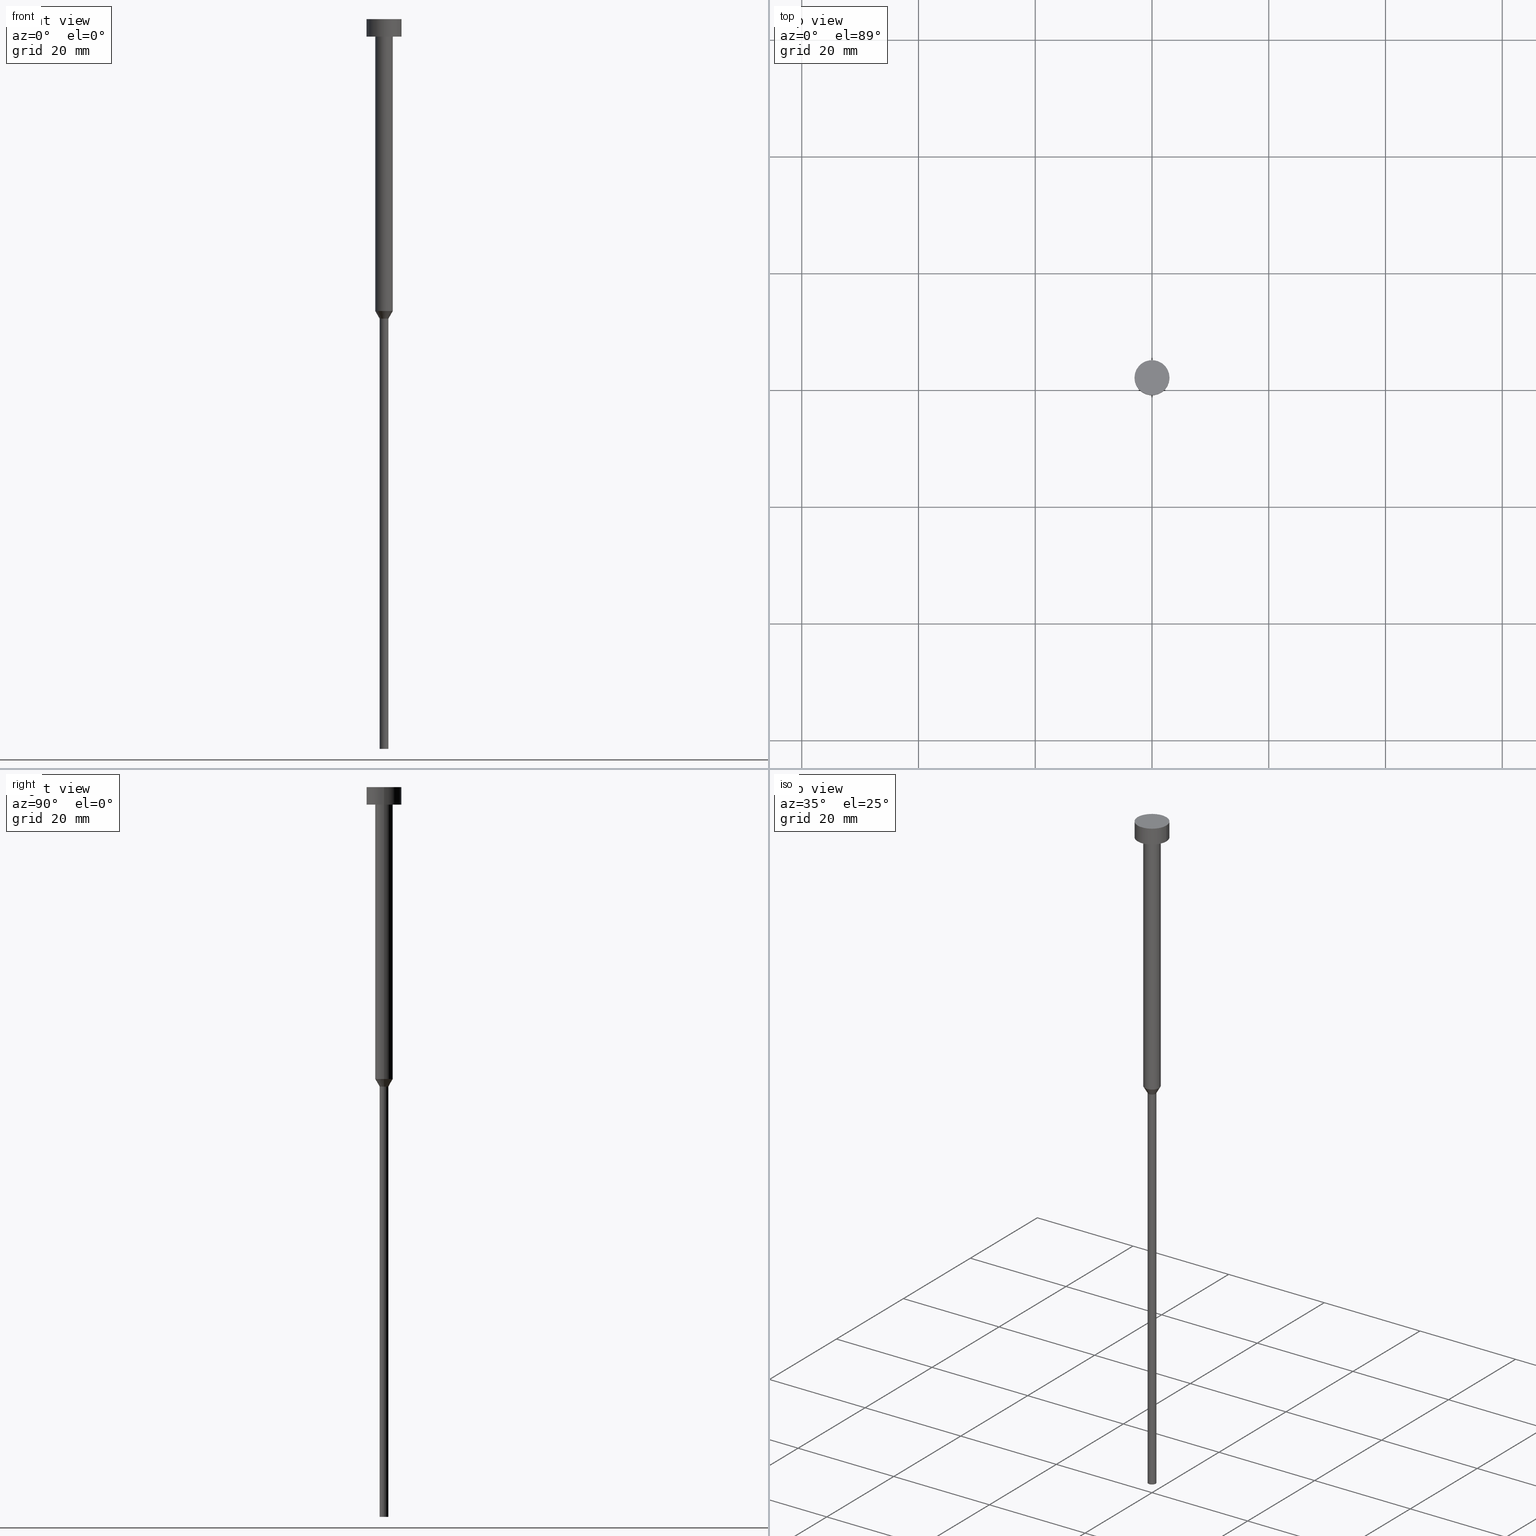
[diagram: canonical four-view strip — front | top / right | iso, engineering-drawing reading convention]
A machine part, canonical four-view strip (front | top / right | iso — engineering-drawing reading convention). The complete STEP part file that produces these views, byte-faithful:
ISO-10303-21;
HEADER;
FILE_DESCRIPTION (( 'STEP AP203' ),
    '1' );
FILE_NAME ('43c1.STEP',
    '2023-02-13T10:54:44',
    ( '' ),
    ( '' ),
    'SwSTEP 2.0',
    'SolidWorks 2019',
    '' );
FILE_SCHEMA (( 'CONFIG_CONTROL_DESIGN' ));
ENDSEC;

DATA;
#1 = ORIENTED_EDGE ( 'NONE', *, *, #297, .F. ) ;
#2 = EDGE_CURVE ( 'NONE', #118, #176, #311, .T. ) ;
#3 = PERSON_AND_ORGANIZATION ( #81, #170 ) ;
#4 = ORIENTED_EDGE ( 'NONE', *, *, #312, .T. ) ;
#5 = UNCERTAINTY_MEASURE_WITH_UNIT (LENGTH_MEASURE( 1.000000000000000082E-05 ), #190, 'distance_accuracy_value', 'NONE');
#6 = DIRECTION ( 'NONE',  ( 1.000000000000000000, 0.000000000000000000, 0.000000000000000000 ) ) ;
#7 = CC_DESIGN_PERSON_AND_ORGANIZATION_ASSIGNMENT ( #302, #196, ( #247 ) ) ;
#8 = LINE ( 'NONE', #226, #292 ) ;
#9 = EDGE_LOOP ( 'NONE', ( #217, #283 ) ) ;
#10 = AXIS2_PLACEMENT_3D ( 'NONE', #39, #124, #61 ) ;
#11 = CARTESIAN_POINT ( 'NONE',  ( -3.000000000000000000, 3.673940397442059868E-16, -3.000000000000000888 ) ) ;
#12 = COORDINATED_UNIVERSAL_TIME_OFFSET ( 1, 0, .AHEAD. ) ;
#13 = MANIFOLD_SOLID_BREP ( 'Rotovat1', #44 ) ;
#14 = CYLINDRICAL_SURFACE ( 'NONE', #88, 0.7500000000000000000 ) ;
#15 = CALENDAR_DATE ( 2023, 13, 2 ) ;
#16 = DIRECTION ( 'NONE',  ( 1.000000000000000000, 0.000000000000000000, 0.000000000000000000 ) ) ;
#17 = AXIS2_PLACEMENT_3D ( 'NONE', #215, #322, #163 ) ;
#18 = DIRECTION ( 'NONE',  ( 1.000000000000000000, 0.000000000000000000, 0.000000000000000000 ) ) ;
#19 = LINE ( 'NONE', #130, #105 ) ;
#20 = DIRECTION ( 'NONE',  ( 1.000000000000000000, 0.000000000000000000, 0.000000000000000000 ) ) ;
#21 = VECTOR ( 'NONE', #188, 1000.000000000000000 ) ;
#22 = LOCAL_TIME ( 11, 54, 44.00000000000000000, #341 ) ;
#23 = FACE_BOUND ( 'NONE', #336, .T. ) ;
#24 = ORIENTED_EDGE ( 'NONE', *, *, #250, .T. ) ;
#25 = LINE ( 'NONE', #248, #329 ) ;
#26 = ORIENTED_EDGE ( 'NONE', *, *, #47, .T. ) ;
#27 = DIRECTION ( 'NONE',  ( 1.000000000000000000, 0.000000000000000000, 0.000000000000000000 ) ) ;
#28 = DATE_TIME_ROLE ( 'creation_date' ) ;
#29 = EDGE_CURVE ( 'NONE', #176, #261, #8, .T. ) ;
#30 = APPROVAL_STATUS ( 'not_yet_approved' ) ;
#31 = ORIENTED_EDGE ( 'NONE', *, *, #2, .F. ) ;
#32 = ORIENTED_EDGE ( 'NONE', *, *, #317, .T. ) ;
#33 = DIRECTION ( 'NONE',  ( 1.000000000000000000, 0.000000000000000000, 0.000000000000000000 ) ) ;
#34 = EDGE_CURVE ( 'NONE', #55, #66, #180, .T. ) ;
#35 = VERTEX_POINT ( 'NONE', #174 ) ;
#36 = COORDINATED_UNIVERSAL_TIME_OFFSET ( 1, 0, .AHEAD. ) ;
#37 = DIRECTION ( 'NONE',  ( -0.000000000000000000, -0.000000000000000000, 1.000000000000000000 ) ) ;
#38 = CIRCLE ( 'NONE', #271, 3.000000000000000000 ) ;
#39 = CARTESIAN_POINT ( 'NONE',  ( 0.000000000000000000, 0.000000000000000000, 0.000000000000000000 ) ) ;
#40 = CARTESIAN_POINT ( 'NONE',  ( 0.000000000000000000, 0.000000000000000000, 0.000000000000000000 ) ) ;
#41 = ADVANCED_FACE ( 'NONE', ( #201 ), #280, .T. ) ;
#42 = COORDINATED_UNIVERSAL_TIME_OFFSET ( 1, 0, .AHEAD. ) ;
#43 = DIRECTION ( 'NONE',  ( -0.000000000000000000, -0.000000000000000000, 1.000000000000000000 ) ) ;
#44 = CLOSED_SHELL ( 'NONE', ( #178, #353, #278, #53, #141, #204, #331, #121, #235, #187, #41 ) ) ;
#45 = LINE ( 'NONE', #211, #21 ) ;
#46 = CC_DESIGN_SECURITY_CLASSIFICATION ( #247, ( #181 ) ) ;
#47 = EDGE_CURVE ( 'NONE', #50, #94, #100, .T. ) ;
#48 = DIRECTION ( 'NONE',  ( -1.000000000000000000, 0.000000000000000000, -0.000000000000000000 ) ) ;
#49 = DIRECTION ( 'NONE',  ( -0.000000000000000000, -0.000000000000000000, 1.000000000000000000 ) ) ;
#50 = VERTEX_POINT ( 'NONE', #214 ) ;
#51 = AXIS2_PLACEMENT_3D ( 'NONE', #40, #155, #318 ) ;
#52 = DIRECTION ( 'NONE',  ( 1.000000000000000000, 0.000000000000000000, 0.000000000000000000 ) ) ;
#53 = ADVANCED_FACE ( 'NONE', ( #320 ), #243, .T. ) ;
#54 = DIRECTION ( 'NONE',  ( -0.000000000000000000, -0.000000000000000000, 1.000000000000000000 ) ) ;
#55 = VERTEX_POINT ( 'NONE', #79 ) ;
#56 = CIRCLE ( 'NONE', #352, 1.500000000000000000 ) ;
#57 = CC_DESIGN_PERSON_AND_ORGANIZATION_ASSIGNMENT ( #142, #265, ( #80 ) ) ;
#58 = APPROVAL_DATE_TIME ( #238, #242 ) ;
#59 = PERSON_AND_ORGANIZATION ( #81, #170 ) ;
#60 = ORIENTED_EDGE ( 'NONE', *, *, #229, .F. ) ;
#61 = DIRECTION ( 'NONE',  ( 1.000000000000000000, 0.000000000000000000, 0.000000000000000000 ) ) ;
#62 = ORIENTED_EDGE ( 'NONE', *, *, #167, .F. ) ;
#63 =( GEOMETRIC_REPRESENTATION_CONTEXT ( 3 ) GLOBAL_UNCERTAINTY_ASSIGNED_CONTEXT ( ( #5 ) ) GLOBAL_UNIT_ASSIGNED_CONTEXT ( ( #190, #323, #350 ) ) REPRESENTATION_CONTEXT ( 'NONE', 'WORKASPACE' ) );
#64 = DIRECTION ( 'NONE',  ( -0.000000000000000000, -0.000000000000000000, 1.000000000000000000 ) ) ;
#65 = EDGE_CURVE ( 'NONE', #93, #35, #157, .T. ) ;
#66 = VERTEX_POINT ( 'NONE', #103 ) ;
#67 = CC_DESIGN_PERSON_AND_ORGANIZATION_ASSIGNMENT ( #3, #234, ( #181 ) ) ;
#68 = ORIENTED_EDGE ( 'NONE', *, *, #244, .T. ) ;
#69 = EDGE_CURVE ( 'NONE', #219, #198, #19, .T. ) ;
#70 = CONICAL_SURFACE ( 'NONE', #346, 1.500000000000000000, 0.5235987755983013692 ) ;
#71 = DATE_AND_TIME ( #145, #310 ) ;
#72 = CARTESIAN_POINT ( 'NONE',  ( 1.500000000000000000, 0.000000000000000000, -50.00000000000000000 ) ) ;
#73 = CYLINDRICAL_SURFACE ( 'NONE', #51, 3.000000000000000000 ) ;
#74 = CC_DESIGN_PERSON_AND_ORGANIZATION_ASSIGNMENT ( #115, #99, ( #181 ) ) ;
#75 = VECTOR ( 'NONE', #125, 1000.000000000000000 ) ;
#76 = CARTESIAN_POINT ( 'NONE',  ( 0.000000000000000000, 0.000000000000000000, -50.00000000000000000 ) ) ;
#77 = AXIS2_PLACEMENT_3D ( 'NONE', #129, #136, #272 ) ;
#78 = EDGE_CURVE ( 'NONE', #94, #55, #45, .T. ) ;
#79 = CARTESIAN_POINT ( 'NONE',  ( -3.000000000000000000, 3.673940397442059868E-16, -3.673940397442059868E-16 ) ) ;
#80 = PRODUCT ( '43c1', '43c1', '', ( #171 ) ) ;
#81 = PERSON ( 'NEUR�EN�', 'NEUR�EN�', 'NEUR�EN�', ('NEUR�EN�'), ('NEUR�EN�'), ('NEUR�EN�') ) ;
#82 = PRODUCT_RELATED_PRODUCT_CATEGORY ( 'detail', '', ( #80 ) ) ;
#83 = VECTOR ( 'NONE', #208, 1000.000000000000227 ) ;
#84 = DIRECTION ( 'NONE',  ( 1.000000000000000000, 0.000000000000000000, 0.000000000000000000 ) ) ;
#85 = ORIENTED_EDGE ( 'NONE', *, *, #34, .T. ) ;
#86 = CARTESIAN_POINT ( 'NONE',  ( 0.7500000000000000000, 0.000000000000000000, -125.0000000000000000 ) ) ;
#87 = AXIS2_PLACEMENT_3D ( 'NONE', #212, #288, #268 ) ;
#88 = AXIS2_PLACEMENT_3D ( 'NONE', #102, #210, #184 ) ;
#89 = CIRCLE ( 'NONE', #119, 0.7500000000000000000 ) ;
#90 = DATE_AND_TIME ( #15, #22 ) ;
#91 = ORIENTED_EDGE ( 'NONE', *, *, #209, .T. ) ;
#92 = APPROVAL_DATE_TIME ( #284, #207 ) ;
#93 = VERTEX_POINT ( 'NONE', #345 ) ;
#94 = VERTEX_POINT ( 'NONE', #11 ) ;
#95 = VECTOR ( 'NONE', #116, 1000.000000000000227 ) ;
#96 = ORIENTED_EDGE ( 'NONE', *, *, #69, .F. ) ;
#97 = EDGE_LOOP ( 'NONE', ( #26, #144, #60, #149 ) ) ;
#98 = PLANE ( 'NONE',  #87 ) ;
#99 = PERSON_AND_ORGANIZATION_ROLE ( 'design_supplier' ) ;
#100 = CIRCLE ( 'NONE', #245, 3.000000000000000000 ) ;
#101 = AXIS2_PLACEMENT_3D ( 'NONE', #348, #54, #327 ) ;
#102 = CARTESIAN_POINT ( 'NONE',  ( 0.000000000000000000, 0.000000000000000000, 0.000000000000000000 ) ) ;
#103 = CARTESIAN_POINT ( 'NONE',  ( 3.000000000000000000, 0.000000000000000000, -3.673940397442059868E-16 ) ) ;
#104 = CARTESIAN_POINT ( 'NONE',  ( 0.000000000000000000, 0.000000000000000000, 0.000000000000000000 ) ) ;
#105 = VECTOR ( 'NONE', #37, 1000.000000000000000 ) ;
#106 = FACE_OUTER_BOUND ( 'NONE', #205, .T. ) ;
#107 = CIRCLE ( 'NONE', #127, 0.7500000000000000000 ) ;
#108 = FACE_OUTER_BOUND ( 'NONE', #177, .T. ) ;
#109 = ORIENTED_EDGE ( 'NONE', *, *, #29, .F. ) ;
#110 = CARTESIAN_POINT ( 'NONE',  ( 0.000000000000000000, 0.000000000000000000, -50.00000000000000000 ) ) ;
#111 = DIRECTION ( 'NONE',  ( -0.000000000000000000, -0.000000000000000000, 1.000000000000000000 ) ) ;
#112 = PERSON_AND_ORGANIZATION ( #81, #170 ) ;
#113 = ORIENTED_EDGE ( 'NONE', *, *, #167, .T. ) ;
#114 = CC_DESIGN_APPROVAL ( #242, ( #247 ) ) ;
#115 = PERSON_AND_ORGANIZATION ( #81, #170 ) ;
#116 = DIRECTION ( 'NONE',  ( 0.5000000000000021094, 0.000000000000000000, 0.8660254037844373753 ) ) ;
#117 = ORIENTED_EDGE ( 'NONE', *, *, #158, .T. ) ;
#118 = VERTEX_POINT ( 'NONE', #316 ) ;
#119 = AXIS2_PLACEMENT_3D ( 'NONE', #191, #49, #84 ) ;
#120 = ORIENTED_EDGE ( 'NONE', *, *, #69, .T. ) ;
#121 = ADVANCED_FACE ( 'NONE', ( #153 ), #123, .T. ) ;
#122 = APPLICATION_CONTEXT ( 'configuration controlled 3d designs of mechanical parts and assemblies' ) ;
#123 = CYLINDRICAL_SURFACE ( 'NONE', #197, 1.500000000000000000 ) ;
#124 = DIRECTION ( 'NONE',  ( 0.000000000000000000, 0.000000000000000000, 1.000000000000000000 ) ) ;
#125 = DIRECTION ( 'NONE',  ( -0.000000000000000000, -0.000000000000000000, 1.000000000000000000 ) ) ;
#126 = DATE_TIME_ROLE ( 'classification_date' ) ;
#127 = AXIS2_PLACEMENT_3D ( 'NONE', #315, #43, #183 ) ;
#128 = CARTESIAN_POINT ( 'NONE',  ( 0.000000000000000000, 0.000000000000000000, 0.000000000000000000 ) ) ;
#129 = CARTESIAN_POINT ( 'NONE',  ( 0.000000000000000000, 0.000000000000000000, -3.673940397442059868E-16 ) ) ;
#130 = CARTESIAN_POINT ( 'NONE',  ( -0.7500000000000000000, 9.184850993605149670E-17, 0.000000000000000000 ) ) ;
#131 = AXIS2_PLACEMENT_3D ( 'NONE', #76, #241, #16 ) ;
#132 = DIRECTION ( 'NONE',  ( 1.000000000000000000, 0.000000000000000000, 0.000000000000000000 ) ) ;
#133 = CC_DESIGN_APPROVAL ( #207, ( #173 ) ) ;
#134 = FACE_OUTER_BOUND ( 'NONE', #9, .T. ) ;
#135 = DIRECTION ( 'NONE',  ( -0.000000000000000000, -0.000000000000000000, 1.000000000000000000 ) ) ;
#136 = DIRECTION ( 'NONE',  ( -0.000000000000000000, -0.000000000000000000, 1.000000000000000000 ) ) ;
#137 = AXIS2_PLACEMENT_3D ( 'NONE', #203, #309, #148 ) ;
#138 = ORIENTED_EDGE ( 'NONE', *, *, #34, .F. ) ;
#139 = AXIS2_PLACEMENT_3D ( 'NONE', #189, #251, #347 ) ;
#140 = CARTESIAN_POINT ( 'NONE',  ( 0.000000000000000000, 0.000000000000000000, -3.000000000000000888 ) ) ;
#141 = ADVANCED_FACE ( 'NONE', ( #338 ), #98, .T. ) ;
#142 = PERSON_AND_ORGANIZATION ( #81, #170 ) ;
#143 = CC_DESIGN_PERSON_AND_ORGANIZATION_ASSIGNMENT ( #306, #263, ( #173 ) ) ;
#144 = ORIENTED_EDGE ( 'NONE', *, *, #78, .T. ) ;
#145 = CALENDAR_DATE ( 2023, 13, 2 ) ;
#146 = CARTESIAN_POINT ( 'NONE',  ( 1.500000000000000000, 0.000000000000000000, -50.00000000000000000 ) ) ;
#147 = LOCAL_TIME ( 11, 54, 44.00000000000000000, #42 ) ;
#148 = DIRECTION ( 'NONE',  ( 1.000000000000000000, 0.000000000000000000, 0.000000000000000000 ) ) ;
#149 = ORIENTED_EDGE ( 'NONE', *, *, #254, .F. ) ;
#150 = ORIENTED_EDGE ( 'NONE', *, *, #192, .F. ) ;
#151 = SECURITY_CLASSIFICATION_LEVEL ( 'unclassified' ) ;
#152 = AXIS2_PLACEMENT_3D ( 'NONE', #296, #249, #52 ) ;
#153 = FACE_OUTER_BOUND ( 'NONE', #335, .T. ) ;
#154 = DATE_AND_TIME ( #277, #299 ) ;
#155 = DIRECTION ( 'NONE',  ( -0.000000000000000000, -0.000000000000000000, 1.000000000000000000 ) ) ;
#156 = PERSON_AND_ORGANIZATION ( #81, #170 ) ;
#157 = LINE ( 'NONE', #264, #75 ) ;
#158 = EDGE_CURVE ( 'NONE', #198, #93, #240, .T. ) ;
#159 = CYLINDRICAL_SURFACE ( 'NONE', #224, 3.000000000000000000 ) ;
#160 = FACE_OUTER_BOUND ( 'NONE', #199, .T. ) ;
#161 = ADVANCED_BREP_SHAPE_REPRESENTATION ( '43c1', ( #13, #10 ), #63 ) ;
#162 = CARTESIAN_POINT ( 'NONE',  ( 0.000000000000000000, 0.000000000000000000, -50.00000000000000000 ) ) ;
#163 = DIRECTION ( 'NONE',  ( 1.000000000000000000, 0.000000000000000000, 0.000000000000000000 ) ) ;
#164 = AXIS2_PLACEMENT_3D ( 'NONE', #162, #300, #20 ) ;
#165 = DIRECTION ( 'NONE',  ( 0.000000000000000000, 0.000000000000000000, -1.000000000000000000 ) ) ;
#166 = ORIENTED_EDGE ( 'NONE', *, *, #321, .T. ) ;
#167 = EDGE_CURVE ( 'NONE', #176, #93, #286, .T. ) ;
#168 = DIRECTION ( 'NONE',  ( -0.000000000000000000, -0.000000000000000000, 1.000000000000000000 ) ) ;
#169 = AXIS2_PLACEMENT_3D ( 'NONE', #128, #186, #290 ) ;
#170 = ORGANIZATION ( 'NEUR�EN�', 'NEUR�EN�', '' ) ;
#171 = MECHANICAL_CONTEXT ( 'NONE', #122, 'mechanical' ) ;
#172 = EDGE_LOOP ( 'NONE', ( #68, #117, #62, #31 ) ) ;
#173 = PRODUCT_DEFINITION ( 'NEZN�M�', '', #181, #282 ) ;
#174 = CARTESIAN_POINT ( 'NONE',  ( -1.500000000000000000, 1.836970198721029934E-16, -3.000000000000000888 ) ) ;
#175 = CIRCLE ( 'NONE', #152, 0.7500000000000000000 ) ;
#176 = VERTEX_POINT ( 'NONE', #72 ) ;
#177 = EDGE_LOOP ( 'NONE', ( #113, #258, #330, #109 ) ) ;
#178 = ADVANCED_FACE ( 'NONE', ( #236 ), #159, .T. ) ;
#179 = ORIENTED_EDGE ( 'NONE', *, *, #29, .T. ) ;
#180 = CIRCLE ( 'NONE', #237, 3.000000000000000000 ) ;
#181 = PRODUCT_DEFINITION_FORMATION_WITH_SPECIFIED_SOURCE ( 'LIBOVOLN�', '', #80, .NOT_KNOWN. ) ;
#182 = CARTESIAN_POINT ( 'NONE',  ( 0.000000000000000000, 0.000000000000000000, 0.000000000000000000 ) ) ;
#183 = DIRECTION ( 'NONE',  ( 1.000000000000000000, 0.000000000000000000, 0.000000000000000000 ) ) ;
#184 = DIRECTION ( 'NONE',  ( 1.000000000000000000, 0.000000000000000000, 0.000000000000000000 ) ) ;
#185 = LOCAL_TIME ( 11, 54, 44.00000000000000000, #225 ) ;
#186 = DIRECTION ( 'NONE',  ( -0.000000000000000000, -0.000000000000000000, 1.000000000000000000 ) ) ;
#187 = ADVANCED_FACE ( 'NONE', ( #106 ), #73, .T. ) ;
#188 = DIRECTION ( 'NONE',  ( -0.000000000000000000, -0.000000000000000000, 1.000000000000000000 ) ) ;
#189 = CARTESIAN_POINT ( 'NONE',  ( 0.000000000000000000, 0.000000000000000000, -3.000000000000000888 ) ) ;
#190 =( LENGTH_UNIT ( ) NAMED_UNIT ( * ) SI_UNIT ( .MILLI., .METRE. ) );
#191 = CARTESIAN_POINT ( 'NONE',  ( 0.000000000000000000, 0.000000000000000000, -125.0000000000000000 ) ) ;
#192 = EDGE_CURVE ( 'NONE', #35, #261, #56, .T. ) ;
#193 = CARTESIAN_POINT ( 'NONE',  ( 0.000000000000000000, 0.000000000000000000, -51.29903810567665090 ) ) ;
#194 = ORIENTED_EDGE ( 'NONE', *, *, #65, .F. ) ;
#195 = APPROVAL ( #30, 'NEUR�EN�' ) ;
#196 = PERSON_AND_ORGANIZATION_ROLE ( 'classification_officer' ) ;
#197 = AXIS2_PLACEMENT_3D ( 'NONE', #104, #233, #314 ) ;
#198 = VERTEX_POINT ( 'NONE', #340 ) ;
#199 = EDGE_LOOP ( 'NONE', ( #96, #166, #281, #313 ) ) ;
#200 = CARTESIAN_POINT ( 'NONE',  ( 0.000000000000000000, 0.000000000000000000, -3.673940397442059868E-16 ) ) ;
#201 = FACE_OUTER_BOUND ( 'NONE', #227, .T. ) ;
#202 = APPROVAL_PERSON_ORGANIZATION ( #112, #242, #289 ) ;
#203 = CARTESIAN_POINT ( 'NONE',  ( 0.000000000000000000, 0.000000000000000000, -1.836970198721029934E-16 ) ) ;
#204 = ADVANCED_FACE ( 'NONE', ( #160 ), #14, .T. ) ;
#205 = EDGE_LOOP ( 'NONE', ( #274, #32, #349, #138 ) ) ;
#206 = APPROVAL_ROLE ( '' ) ;
#207 = APPROVAL ( #255, 'NEUR�EN�' ) ;
#208 = DIRECTION ( 'NONE',  ( -0.5000000000000021094, 6.123233995736791920E-17, 0.8660254037844373753 ) ) ;
#209 = EDGE_CURVE ( 'NONE', #304, #219, #107, .T. ) ;
#210 = DIRECTION ( 'NONE',  ( -0.000000000000000000, -0.000000000000000000, 1.000000000000000000 ) ) ;
#211 = CARTESIAN_POINT ( 'NONE',  ( -3.000000000000000000, 3.673940397442059868E-16, 0.000000000000000000 ) ) ;
#212 = CARTESIAN_POINT ( 'NONE',  ( 0.000000000000000000, 0.000000000000000000, -125.0000000000000000 ) ) ;
#213 = APPROVAL_PERSON_ORGANIZATION ( #59, #207, #206 ) ;
#214 = CARTESIAN_POINT ( 'NONE',  ( 3.000000000000000000, 0.000000000000000000, -3.000000000000000888 ) ) ;
#215 = CARTESIAN_POINT ( 'NONE',  ( 0.000000000000000000, 0.000000000000000000, 0.000000000000000000 ) ) ;
#216 = APPLICATION_CONTEXT ( 'configuration controlled 3d designs of mechanical parts and assemblies' ) ;
#217 = ORIENTED_EDGE ( 'NONE', *, *, #47, .F. ) ;
#218 = CYLINDRICAL_SURFACE ( 'NONE', #17, 1.500000000000000000 ) ;
#219 = VERTEX_POINT ( 'NONE', #291 ) ;
#220 = CARTESIAN_POINT ( 'NONE',  ( 0.000000000000000000, -3.000000000000000000, -3.000000000000000888 ) ) ;
#221 = DIRECTION ( 'NONE',  ( 1.000000000000000000, 0.000000000000000000, 0.000000000000000000 ) ) ;
#222 = APPROVAL_STATUS ( 'not_yet_approved' ) ;
#223 = ORIENTED_EDGE ( 'NONE', *, *, #192, .T. ) ;
#224 = AXIS2_PLACEMENT_3D ( 'NONE', #182, #342, #18 ) ;
#225 = COORDINATED_UNIVERSAL_TIME_OFFSET ( 1, 0, .AHEAD. ) ;
#226 = CARTESIAN_POINT ( 'NONE',  ( 1.500000000000000000, 0.000000000000000000, 0.000000000000000000 ) ) ;
#227 = EDGE_LOOP ( 'NONE', ( #298, #85 ) ) ;
#228 = ORIENTED_EDGE ( 'NONE', *, *, #2, .T. ) ;
#229 = EDGE_CURVE ( 'NONE', #66, #55, #230, .T. ) ;
#230 = CIRCLE ( 'NONE', #77, 3.000000000000000000 ) ;
#231 = ORIENTED_EDGE ( 'NONE', *, *, #209, .F. ) ;
#232 = CC_DESIGN_DATE_AND_TIME_ASSIGNMENT ( #90, #126, ( #247 ) ) ;
#233 = DIRECTION ( 'NONE',  ( -0.000000000000000000, -0.000000000000000000, 1.000000000000000000 ) ) ;
#234 = PERSON_AND_ORGANIZATION_ROLE ( 'creator' ) ;
#235 = ADVANCED_FACE ( 'NONE', ( #23, #134 ), #252, .T. ) ;
#236 = FACE_OUTER_BOUND ( 'NONE', #97, .T. ) ;
#237 = AXIS2_PLACEMENT_3D ( 'NONE', #200, #308, #6 ) ;
#238 = DATE_AND_TIME ( #267, #147 ) ;
#239 = CIRCLE ( 'NONE', #101, 1.500000000000000000 ) ;
#240 = LINE ( 'NONE', #343, #83 ) ;
#241 = DIRECTION ( 'NONE',  ( -0.000000000000000000, -0.000000000000000000, 1.000000000000000000 ) ) ;
#242 = APPROVAL ( #222, 'NEUR�EN�' ) ;
#243 = CYLINDRICAL_SURFACE ( 'NONE', #169, 0.7500000000000000000 ) ;
#244 = EDGE_CURVE ( 'NONE', #118, #198, #303, .T. ) ;
#245 = AXIS2_PLACEMENT_3D ( 'NONE', #259, #64, #33 ) ;
#246 = CONICAL_SURFACE ( 'NONE', #164, 1.500000000000000000, 0.5235987755983013692 ) ;
#247 = SECURITY_CLASSIFICATION ( '', '', #151 ) ;
#248 = CARTESIAN_POINT ( 'NONE',  ( 3.000000000000000000, 0.000000000000000000, 0.000000000000000000 ) ) ;
#249 = DIRECTION ( 'NONE',  ( -0.000000000000000000, -0.000000000000000000, 1.000000000000000000 ) ) ;
#250 = EDGE_CURVE ( 'NONE', #198, #118, #175, .T. ) ;
#251 = DIRECTION ( 'NONE',  ( -0.000000000000000000, -0.000000000000000000, 1.000000000000000000 ) ) ;
#252 = PLANE ( 'NONE',  #324 ) ;
#253 = DIRECTION ( 'NONE',  ( -0.000000000000000000, -0.000000000000000000, 1.000000000000000000 ) ) ;
#254 = EDGE_CURVE ( 'NONE', #50, #66, #25, .T. ) ;
#255 = APPROVAL_STATUS ( 'not_yet_approved' ) ;
#256 = ORIENTED_EDGE ( 'NONE', *, *, #321, .F. ) ;
#257 = APPROVAL_DATE_TIME ( #71, #195 ) ;
#258 = ORIENTED_EDGE ( 'NONE', *, *, #65, .T. ) ;
#259 = CARTESIAN_POINT ( 'NONE',  ( 0.000000000000000000, 0.000000000000000000, -3.000000000000000888 ) ) ;
#260 = ORIENTED_EDGE ( 'NONE', *, *, #337, .F. ) ;
#261 = VERTEX_POINT ( 'NONE', #354 ) ;
#262 = APPROVAL_PERSON_ORGANIZATION ( #156, #195, #339 ) ;
#263 = PERSON_AND_ORGANIZATION_ROLE ( 'creator' ) ;
#264 = CARTESIAN_POINT ( 'NONE',  ( -1.500000000000000000, 1.836970198721029934E-16, 0.000000000000000000 ) ) ;
#265 = PERSON_AND_ORGANIZATION_ROLE ( 'design_owner' ) ;
#266 = CARTESIAN_POINT ( 'NONE',  ( 0.000000000000000000, 0.000000000000000000, -3.000000000000000888 ) ) ;
#267 = CALENDAR_DATE ( 2023, 13, 2 ) ;
#268 = DIRECTION ( 'NONE',  ( -1.000000000000000000, 0.000000000000000000, -0.000000000000000000 ) ) ;
#269 = DIRECTION ( 'NONE',  ( -0.000000000000000000, -0.000000000000000000, 1.000000000000000000 ) ) ;
#270 = CARTESIAN_POINT ( 'NONE',  ( 0.7500000000000000000, 0.000000000000000000, 0.000000000000000000 ) ) ;
#271 = AXIS2_PLACEMENT_3D ( 'NONE', #140, #253, #132 ) ;
#272 = DIRECTION ( 'NONE',  ( 1.000000000000000000, 0.000000000000000000, 0.000000000000000000 ) ) ;
#273 = APPLICATION_PROTOCOL_DEFINITION ( 'international standard', 'config_control_design', 1994, #122 ) ;
#274 = ORIENTED_EDGE ( 'NONE', *, *, #78, .F. ) ;
#275 = FACE_OUTER_BOUND ( 'NONE', #172, .T. ) ;
#276 = CIRCLE ( 'NONE', #139, 1.500000000000000000 ) ;
#277 = CALENDAR_DATE ( 2023, 13, 2 ) ;
#278 = ADVANCED_FACE ( 'NONE', ( #275 ), #70, .T. ) ;
#279 = EDGE_LOOP ( 'NONE', ( #231, #256 ) ) ;
#280 = PLANE ( 'NONE',  #137 ) ;
#281 = ORIENTED_EDGE ( 'NONE', *, *, #337, .T. ) ;
#282 = DESIGN_CONTEXT ( 'detailed design', #216, 'design' ) ;
#283 = ORIENTED_EDGE ( 'NONE', *, *, #317, .F. ) ;
#284 = DATE_AND_TIME ( #332, #185 ) ;
#285 = EDGE_LOOP ( 'NONE', ( #326, #24, #228, #1 ) ) ;
#286 = CIRCLE ( 'NONE', #131, 1.500000000000000000 ) ;
#287 = AXIS2_PLACEMENT_3D ( 'NONE', #193, #135, #27 ) ;
#288 = DIRECTION ( 'NONE',  ( 0.000000000000000000, 0.000000000000000000, -1.000000000000000000 ) ) ;
#289 = APPROVAL_ROLE ( '' ) ;
#290 = DIRECTION ( 'NONE',  ( 1.000000000000000000, 0.000000000000000000, 0.000000000000000000 ) ) ;
#291 = CARTESIAN_POINT ( 'NONE',  ( -0.7500000000000000000, 9.184850993605149670E-17, -125.0000000000000000 ) ) ;
#292 = VECTOR ( 'NONE', #333, 1000.000000000000000 ) ;
#293 = CC_DESIGN_APPROVAL ( #195, ( #181 ) ) ;
#294 = DIRECTION ( 'NONE',  ( 1.000000000000000000, 0.000000000000000000, 0.000000000000000000 ) ) ;
#295 = FACE_OUTER_BOUND ( 'NONE', #285, .T. ) ;
#296 = CARTESIAN_POINT ( 'NONE',  ( 0.000000000000000000, 0.000000000000000000, -51.29903810567665090 ) ) ;
#297 = EDGE_CURVE ( 'NONE', #93, #176, #239, .T. ) ;
#298 = ORIENTED_EDGE ( 'NONE', *, *, #229, .T. ) ;
#299 = LOCAL_TIME ( 11, 54, 44.00000000000000000, #12 ) ;
#300 = DIRECTION ( 'NONE',  ( -0.000000000000000000, -0.000000000000000000, 1.000000000000000000 ) ) ;
#301 = LINE ( 'NONE', #270, #319 ) ;
#302 = PERSON_AND_ORGANIZATION ( #81, #170 ) ;
#303 = CIRCLE ( 'NONE', #287, 0.7500000000000000000 ) ;
#304 = VERTEX_POINT ( 'NONE', #86 ) ;
#305 = CC_DESIGN_DATE_AND_TIME_ASSIGNMENT ( #154, #28, ( #173 ) ) ;
#306 = PERSON_AND_ORGANIZATION ( #81, #170 ) ;
#307 = ORIENTED_EDGE ( 'NONE', *, *, #297, .T. ) ;
#308 = DIRECTION ( 'NONE',  ( -0.000000000000000000, -0.000000000000000000, 1.000000000000000000 ) ) ;
#309 = DIRECTION ( 'NONE',  ( 0.000000000000000000, -0.000000000000000000, 1.000000000000000000 ) ) ;
#310 = LOCAL_TIME ( 11, 54, 44.00000000000000000, #36 ) ;
#311 = LINE ( 'NONE', #146, #95 ) ;
#312 = EDGE_CURVE ( 'NONE', #261, #35, #276, .T. ) ;
#313 = ORIENTED_EDGE ( 'NONE', *, *, #250, .F. ) ;
#314 = DIRECTION ( 'NONE',  ( 1.000000000000000000, 0.000000000000000000, 0.000000000000000000 ) ) ;
#315 = CARTESIAN_POINT ( 'NONE',  ( 0.000000000000000000, 0.000000000000000000, -125.0000000000000000 ) ) ;
#316 = CARTESIAN_POINT ( 'NONE',  ( 0.7500000000000000000, 0.000000000000000000, -51.29903810567665090 ) ) ;
#317 = EDGE_CURVE ( 'NONE', #94, #50, #38, .T. ) ;
#318 = DIRECTION ( 'NONE',  ( 1.000000000000000000, 0.000000000000000000, 0.000000000000000000 ) ) ;
#319 = VECTOR ( 'NONE', #168, 1000.000000000000000 ) ;
#320 = FACE_OUTER_BOUND ( 'NONE', #351, .T. ) ;
#321 = EDGE_CURVE ( 'NONE', #219, #304, #89, .T. ) ;
#322 = DIRECTION ( 'NONE',  ( -0.000000000000000000, -0.000000000000000000, 1.000000000000000000 ) ) ;
#323 =( NAMED_UNIT ( * ) PLANE_ANGLE_UNIT ( ) SI_UNIT ( $, .RADIAN. ) );
#324 = AXIS2_PLACEMENT_3D ( 'NONE', #220, #165, #48 ) ;
#325 = DIRECTION ( 'NONE',  ( -0.000000000000000000, -0.000000000000000000, 1.000000000000000000 ) ) ;
#326 = ORIENTED_EDGE ( 'NONE', *, *, #158, .F. ) ;
#327 = DIRECTION ( 'NONE',  ( 1.000000000000000000, 0.000000000000000000, 0.000000000000000000 ) ) ;
#328 = SHAPE_DEFINITION_REPRESENTATION ( #344, #161 ) ;
#329 = VECTOR ( 'NONE', #111, 1000.000000000000000 ) ;
#330 = ORIENTED_EDGE ( 'NONE', *, *, #312, .F. ) ;
#331 = ADVANCED_FACE ( 'NONE', ( #295 ), #246, .T. ) ;
#332 = CALENDAR_DATE ( 2023, 13, 2 ) ;
#333 = DIRECTION ( 'NONE',  ( -0.000000000000000000, -0.000000000000000000, 1.000000000000000000 ) ) ;
#334 = ORIENTED_EDGE ( 'NONE', *, *, #244, .F. ) ;
#335 = EDGE_LOOP ( 'NONE', ( #194, #307, #179, #150 ) ) ;
#336 = EDGE_LOOP ( 'NONE', ( #4, #223 ) ) ;
#337 = EDGE_CURVE ( 'NONE', #304, #118, #301, .T. ) ;
#338 = FACE_OUTER_BOUND ( 'NONE', #279, .T. ) ;
#339 = APPROVAL_ROLE ( '' ) ;
#340 = CARTESIAN_POINT ( 'NONE',  ( -0.7500000000000000000, 9.184850993605149670E-17, -51.29903810567665090 ) ) ;
#341 = COORDINATED_UNIVERSAL_TIME_OFFSET ( 1, 0, .AHEAD. ) ;
#342 = DIRECTION ( 'NONE',  ( -0.000000000000000000, -0.000000000000000000, 1.000000000000000000 ) ) ;
#343 = CARTESIAN_POINT ( 'NONE',  ( -1.500000000000000000, 1.836970198721029934E-16, -50.00000000000000000 ) ) ;
#344 = PRODUCT_DEFINITION_SHAPE ( 'NONE', 'NONE',  #173 ) ;
#345 = CARTESIAN_POINT ( 'NONE',  ( -1.500000000000000000, 1.836970198721029934E-16, -50.00000000000000000 ) ) ;
#346 = AXIS2_PLACEMENT_3D ( 'NONE', #110, #325, #221 ) ;
#347 = DIRECTION ( 'NONE',  ( 1.000000000000000000, 0.000000000000000000, 0.000000000000000000 ) ) ;
#348 = CARTESIAN_POINT ( 'NONE',  ( 0.000000000000000000, 0.000000000000000000, -50.00000000000000000 ) ) ;
#349 = ORIENTED_EDGE ( 'NONE', *, *, #254, .T. ) ;
#350 =( NAMED_UNIT ( * ) SI_UNIT ( $, .STERADIAN. ) SOLID_ANGLE_UNIT ( ) );
#351 = EDGE_LOOP ( 'NONE', ( #91, #120, #334, #260 ) ) ;
#352 = AXIS2_PLACEMENT_3D ( 'NONE', #266, #269, #294 ) ;
#353 = ADVANCED_FACE ( 'NONE', ( #108 ), #218, .T. ) ;
#354 = CARTESIAN_POINT ( 'NONE',  ( 1.500000000000000000, 0.000000000000000000, -3.000000000000000888 ) ) ;
#355 = APPLICATION_PROTOCOL_DEFINITION ( 'international standard', 'config_control_design', 1994, #216 ) ;
ENDSEC;
END-ISO-10303-21;
